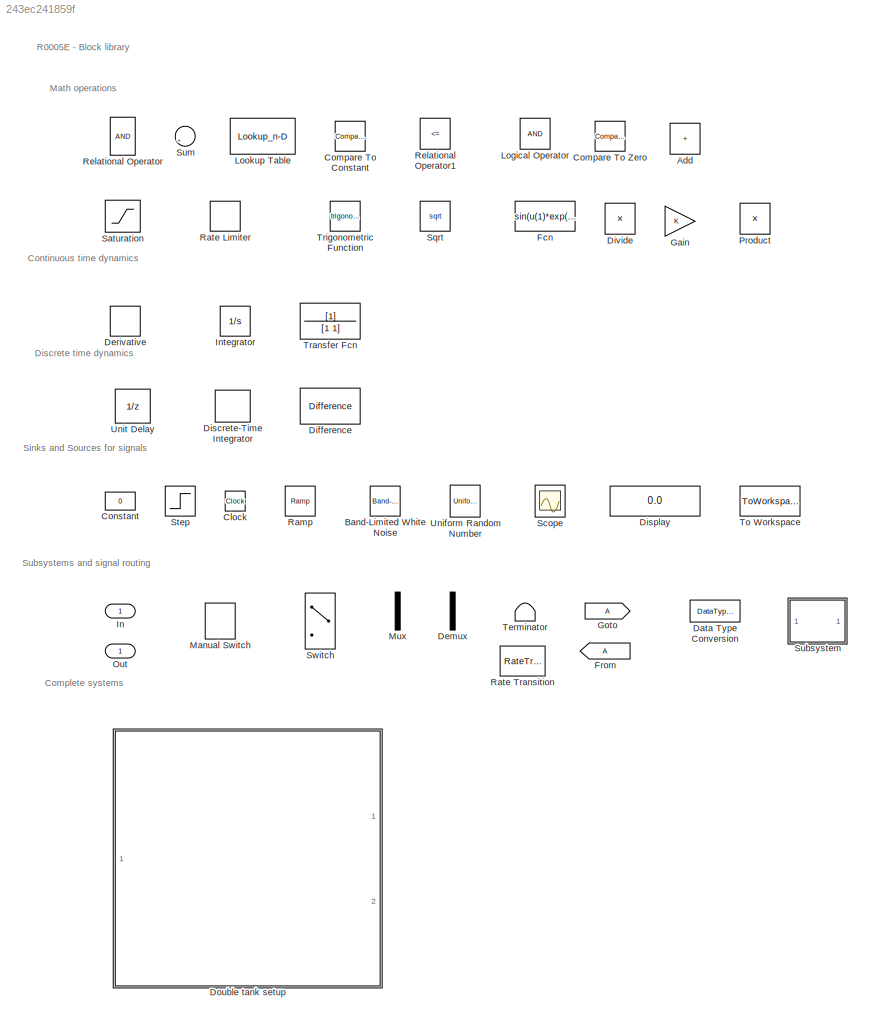
MODEL slx_243ec241859f
KIND library
CONFIG AbsTol = auto
CONFIG EnableMultiTasking = on
CONFIG FixedStep = auto
CONFIG MaxStep = auto
CONFIG MinStep = auto
CONFIG RelTol = 1e-3
CONFIG SampleTimeConstraint = Unconstrained
CONFIG Solver = ode45
CONFIG SolverName = ode45
CONFIG StartTime = 0.0
CONFIG StopTime = 10.0
BLOCK [Sum] Add
  IconShape = rectangular
  Ports = [2, 1]
BLOCK [Reference] Band-Limited White Noise  REF=simulink/Sources/Band-Limited
White Noise
  Ports = [0, 1]
  SourceBlock = simulink/Sources/Band-Limited\nWhite Noise
  SourceProductBaseCode = SL
  SourceType = Band-Limited White Noise.
BLOCK [Clock] Clock
BLOCK [Reference] Compare To Constant  REF=simulink/Logic and Bit
Operations/Compare
To Constant
  Ports = [1, 1]
  SourceBlock = simulink/Logic and Bit\nOperations/Compare\nTo Constant
  SourceProductBaseCode = SL
  SourceType = Compare To Constant
BLOCK [Reference] Compare To Zero  REF=simulink/Logic and Bit
Operations/Compare
To Zero
  Ports = [1, 1]
  SourceBlock = simulink/Logic and Bit\nOperations/Compare\nTo Zero
  SourceProductBaseCode = SL
  SourceType = Compare To Zero
BLOCK [Constant] Constant
  Value = 0
BLOCK [DataTypeConversion] Data Type Conversion
  RndMeth = Floor
  SaturateOnIntegerOverflow = off
BLOCK [Demux] Demux
  Outputs = 2
  Ports = [1, 2]
BLOCK [Derivative] Derivative
BLOCK [Reference] Difference  REF=simulink/Discrete/Difference
  Ports = [1, 1]
  SourceBlock = simulink/Discrete/Difference
  SourceProductBaseCode = SL
  SourceType = Difference
BLOCK [DiscreteIntegrator] Discrete-Time Integrator
  ICPrevOutput = DiscIntNeverNeededParam
  ICPrevScaledInput = DiscIntNeverNeededParam
  Ports = [1, 1]
BLOCK [Display] Display
  Decimation = 1
  Ports = [1]
BLOCK [Product] Divide
  Inputs = */
  Ports = [2, 1]
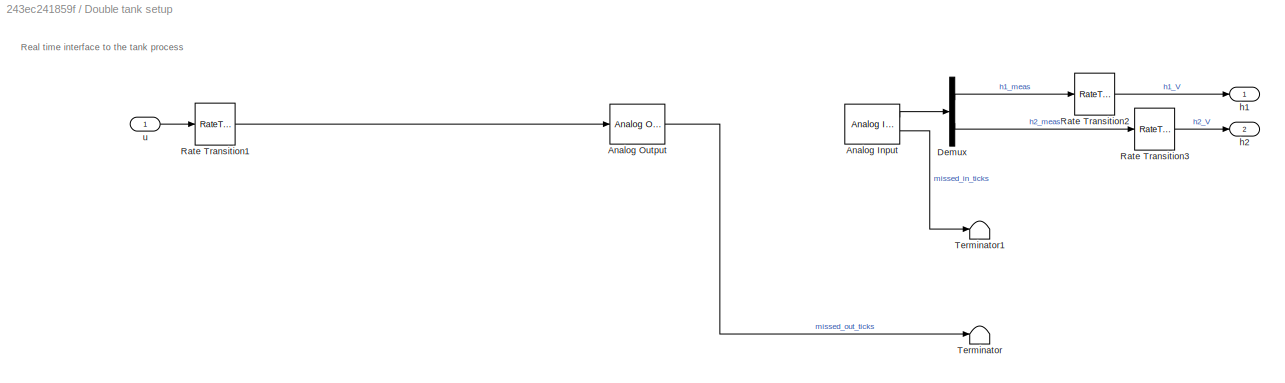
BLOCK [SubSystem] Double tank setup
  CopyFcn = set_param(gcb,'LinkStatus','inactive');\nset_param(gcb,'CopyFcn','');
  Ports = [1, 2]
  RequestExecContextInheritance = off
  StopFcn = chn =get_param(gcb,'u_ch');                          \ns = daq.createSession('ni');                         \nchannel = ['ao',chn];                                \ns.addAnalogOutputChannel('Dev1', channel, 'Voltage');\nx = zeros(5,1);                                      \ns.queueOutputData(x);                                \nlh = s.addlistener('DataRequired', ...               \n@(src,event) src.queue...<+472ch>
BLOCK [Reference] Double tank setup/Analog Input  REF=rtwinlib/Analog Input
  AttributesFormatString = National Instruments\nPCI-6024E [auto]
  Ports = [0, 2]
  SourceBlock = rtwinlib/Analog Input
  SourceProductBaseCode = WT
  SourceType = Simulink Desktop Real-Time Analog Input
BLOCK [Reference] Double tank setup/Analog Output  REF=rtwinlib/Analog Output
  AttributesFormatString = National Instruments\nPCI-6024E [auto]
  Ports = [1, 1]
  SourceBlock = rtwinlib/Analog Output
  SourceProductBaseCode = WT
  SourceType = Simulink Desktop Real-Time Analog Output
BLOCK [Demux] Double tank setup/Demux
  Outputs = 2
  Ports = [1, 2]
BLOCK [RateTransition] Double tank setup/Rate Transition1
  OutPortSampleTime = ts
BLOCK [RateTransition] Double tank setup/Rate Transition2
BLOCK [RateTransition] Double tank setup/Rate Transition3
BLOCK [Terminator] Double tank setup/Terminator
BLOCK [Terminator] Double tank setup/Terminator1
BLOCK [Outport] Double tank setup/h1
BLOCK [Outport] Double tank setup/h2
  Port = 2
BLOCK [Inport] Double tank setup/u
BLOCK [Fcn] Fcn
  Expr = sin(u(1)*exp(2.3*(-u(2))))
BLOCK [From] From
BLOCK [Gain] Gain
BLOCK [Goto] Goto
BLOCK [Inport] In
BLOCK [Integrator] Integrator
  Ports = [1, 1]
BLOCK [Logic] Logical Operator
  AllPortsSameDT = off
  OutDataTypeStr = boolean
  Ports = [2, 1]
BLOCK [Lookup_n-D] Lookup Table
  BreakpointsForDimension1 = x
  BreakpointsForDimension2 = [1:3]
  NumberOfTableDimensions = 1
  Ports = [1, 1]
  RndMeth = Simplest
  Table = y
BLOCK [ManualSwitch] Manual Switch
BLOCK [Mux] Mux
  DisplayOption = bar
  Inputs = 2
  Ports = [2, 1]
BLOCK [Outport] Out
BLOCK [Product] Product
  Ports = [2, 1]
  RndMeth = Zero
BLOCK [Reference] Ramp  REF=simulink/Sources/Ramp
  Ports = [0, 1]
  SourceBlock = simulink/Sources/Ramp
  SourceProductBaseCode = SL
  SourceType = Ramp
BLOCK [RateLimiter] Rate Limiter
  SampleTimeMode = inherited
BLOCK [RateTransition] Rate Transition
BLOCK [RelationalOperator] Relational Operator
  InputSameDT = off
  OutDataTypeStr = boolean
  Ports = [2, 1]
BLOCK [RelationalOperator] Relational Operator1
  InputSameDT = off
  Operator = <=
  OutDataTypeStr = boolean
  Ports = [2, 1]
BLOCK [Saturate] Saturation
  LowerLimit = 0
  UpperLimit = 15.5
BLOCK [Scope] Scope
  Floating = off
  NumInputPorts = 1
  Ports = [1]
  ScopeSpecificationString = C++SS(StrPVP('Location','[218, 321, 918, 833]'),StrPVP('Open','off'),MxPVP('AxesTitles',54,'struct(''axes1'',''%<SignalLabel>'')'),MxPVP('ScopeGraphics',57,'struct(''FigureColor'',''[0.501960784313725 0.501960784313725 0.501960784313725]'',''AxesColor'',''[0 0 0]'',''AxesTickColor'',''[1 1 1]'',''LineColors'',''[1 1 0;1 0 1;0 1 1;1 0 0;0 1 0;0 0 1]'',''LineStyles'',''-|-|-|-|-|-'',''LineWidths'','...<+307ch>
BLOCK [Sqrt] Sqrt
BLOCK [Step] Step
  SampleTime = 0
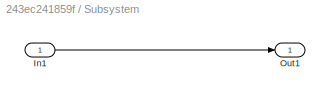
BLOCK [SubSystem] Subsystem
  Ports = [1, 1]
  RequestExecContextInheritance = off
BLOCK [Inport] Subsystem/In1
BLOCK [Outport] Subsystem/Out1
BLOCK [Sum] Sum
  Inputs = |+-
  Ports = [2, 1]
BLOCK [Switch] Switch
  InputSameDT = off
  SaturateOnIntegerOverflow = off
  Threshold = 1
BLOCK [Terminator] Terminator
BLOCK [ToWorkspace] To Workspace
  MaxDataPoints = inf
  Ports = [1]
  SampleTime = -1
  VariableName = x
BLOCK [TransferFcn] Transfer Fcn
  Denominator = [1 1]
BLOCK [Trigonometry] Trigonometric Function
  Ports = [1, 1]
BLOCK [UniformRandomNumber] Uniform Random Number
  SampleTime = 0.1
BLOCK [UnitDelay] Unit Delay
  HasFrameUpgradeWarning = on
  SampleTime = -1
ANNOTATION (root): Complete systems
ANNOTATION (root): Continuous time dynamics
ANNOTATION (root): Discrete time dynamics
ANNOTATION (root): Math operations
ANNOTATION (root): R0005E - Block library
ANNOTATION (root): Sinks and Sources for signals
ANNOTATION (root): Subsystems and signal routing
ANNOTATION Double tank setup: Real time interface to the tank process
LINE Double tank setup/Analog Input:1 -> Double tank setup/Demux:1
LINE Double tank setup/Analog Input:2 -> Double tank setup/Terminator1:1
LINE Double tank setup/Analog Output:1 -> Double tank setup/Terminator:1
LINE Double tank setup/Demux:1 -> Double tank setup/Rate Transition2:1
LINE Double tank setup/Demux:2 -> Double tank setup/Rate Transition3:1
LINE Double tank setup/Rate Transition1:1 -> Double tank setup/Analog Output:1
LINE Double tank setup/Rate Transition2:1 -> Double tank setup/h1:1
LINE Double tank setup/Rate Transition3:1 -> Double tank setup/h2:1
LINE Double tank setup/u:1 -> Double tank setup/Rate Transition1:1
LINE Subsystem/In1:1 -> Subsystem/Out1:1
